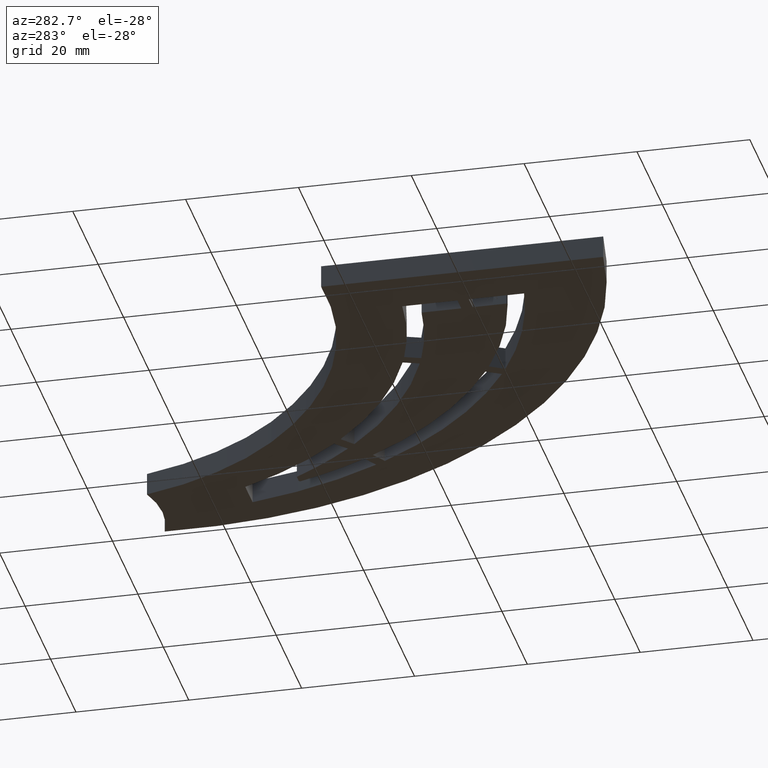
[diagram: clean part render]
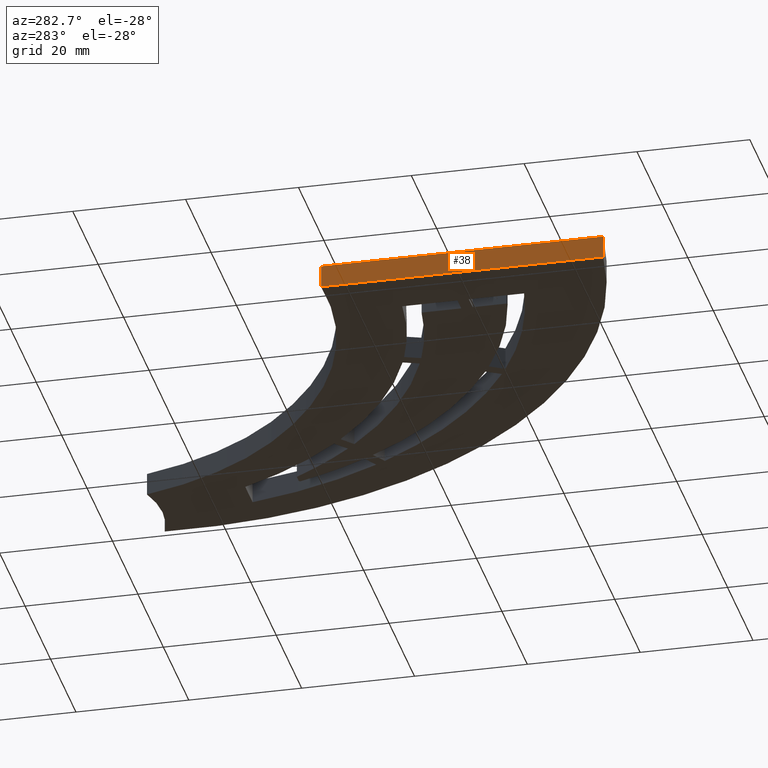
[diagram: same view with one face highlighted and labeled with its STEP entity id]
A machine part, auxiliary view. The second image highlights one B-rep face of the part: STEP entity #38.
In plain terms, the highlighted planar face has unit normal (-1, 0, 0).
Its self-contained STEP definition (entity closure, byte-faithful):
#38 = ADVANCED_FACE ( 'NONE', ( #2313 ), #7690, .T. ) ;
#272 = ORIENTED_EDGE ( 'NONE', *, *, #11826, .F. ) ;
#324 = EDGE_CURVE ( 'NONE', #11500, #12463, #8199, .T. ) ;
#581 = LINE ( 'NONE', #2753, #5722 ) ;
#1446 = AXIS2_PLACEMENT_3D ( 'NONE', #11698, #10848, #12694 ) ;
#1997 = VECTOR ( 'NONE', #7150, 1000.000000000000000 ) ;
#2313 = FACE_OUTER_BOUND ( 'NONE', #11396, .T. ) ;
#2696 = DIRECTION ( 'NONE',  ( 3.552713678800588651E-14, 1.000000000000000000, 0.000000000000000000 ) ) ;
#2753 = CARTESIAN_POINT ( 'NONE',  ( 2.220446049250313081E-13, -24.99999999999879918, 2.000000000000000000 ) ) ;
#3063 = ORIENTED_EDGE ( 'NONE', *, *, #11429, .T. ) ;
#3321 = EDGE_CURVE ( 'NONE', #8354, #12463, #9995, .T. ) ;
#4290 = LINE ( 'NONE', #9479, #12123 ) ;
#4416 = VECTOR ( 'NONE', #2696, 1000.000000000000000 ) ;
#4468 = VERTEX_POINT ( 'NONE', #13137 ) ;
#4661 = CARTESIAN_POINT ( 'NONE',  ( 1.110223024625135740E-12, -3.944304526105082560E-26, -2.000000000000000000 ) ) ;
#5419 = DIRECTION ( 'NONE',  ( 3.552713678800588651E-14, 1.000000000000000000, 0.000000000000000000 ) ) ;
#5722 = VECTOR ( 'NONE', #12856, 1000.000000000000000 ) ;
#5869 = CARTESIAN_POINT ( 'NONE',  ( 1.998401444325281773E-12, 24.99999999999996803, -2.000000000000000000 ) ) ;
#6491 = CARTESIAN_POINT ( 'NONE',  ( 1.998401444325281773E-12, 24.99999999999996803, 2.000000000000000000 ) ) ;
#7150 = DIRECTION ( 'NONE',  ( -0.000000000000000000, -0.000000000000000000, -1.000000000000000000 ) ) ;
#7690 = PLANE ( 'NONE',  #1446 ) ;
#8199 = LINE ( 'NONE', #9072, #1997 ) ;
#8243 = ORIENTED_EDGE ( 'NONE', *, *, #3321, .F. ) ;
#8354 = VERTEX_POINT ( 'NONE', #10827 ) ;
#9072 = CARTESIAN_POINT ( 'NONE',  ( 1.998401444325281773E-12, 24.99999999999996803, 2.000000000000000000 ) ) ;
#9401 = ORIENTED_EDGE ( 'NONE', *, *, #324, .T. ) ;
#9479 = CARTESIAN_POINT ( 'NONE',  ( 1.110223024625135740E-12, -3.944304526105082560E-26, 2.000000000000000000 ) ) ;
#9995 = LINE ( 'NONE', #4661, #4416 ) ;
#10827 = CARTESIAN_POINT ( 'NONE',  ( 2.220446049250313081E-13, -24.99999999999879918, -2.000000000000000000 ) ) ;
#10848 = DIRECTION ( 'NONE',  ( -1.000000000000000000, 3.552713678800588651E-14, 0.000000000000000000 ) ) ;
#11396 = EDGE_LOOP ( 'NONE', ( #8243, #272, #3063, #9401 ) ) ;
#11429 = EDGE_CURVE ( 'NONE', #4468, #11500, #4290, .T. ) ;
#11500 = VERTEX_POINT ( 'NONE', #6491 ) ;
#11698 = CARTESIAN_POINT ( 'NONE',  ( 1.110223024625135740E-12, -3.944304526105082560E-26, 2.000000000000000000 ) ) ;
#11826 = EDGE_CURVE ( 'NONE', #4468, #8354, #581, .T. ) ;
#12123 = VECTOR ( 'NONE', #5419, 1000.000000000000000 ) ;
#12463 = VERTEX_POINT ( 'NONE', #5869 ) ;
#12694 = DIRECTION ( 'NONE',  ( -3.552713678800588651E-14, -1.000000000000000000, 0.000000000000000000 ) ) ;
#12856 = DIRECTION ( 'NONE',  ( -0.000000000000000000, -0.000000000000000000, -1.000000000000000000 ) ) ;
#13137 = CARTESIAN_POINT ( 'NONE',  ( 2.220446049250313081E-13, -24.99999999999879918, 2.000000000000000000 ) ) ;